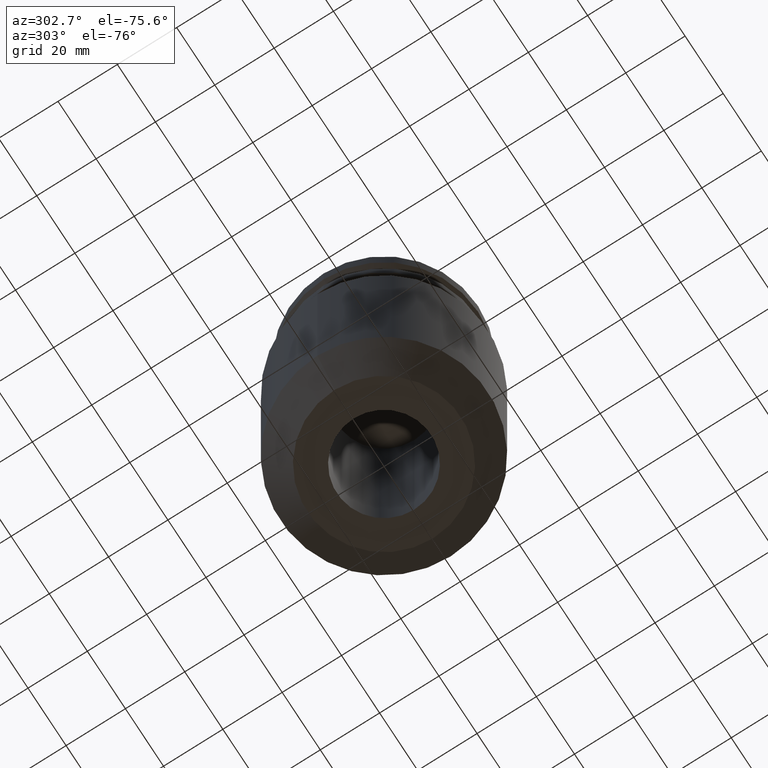
[diagram: clean part render]
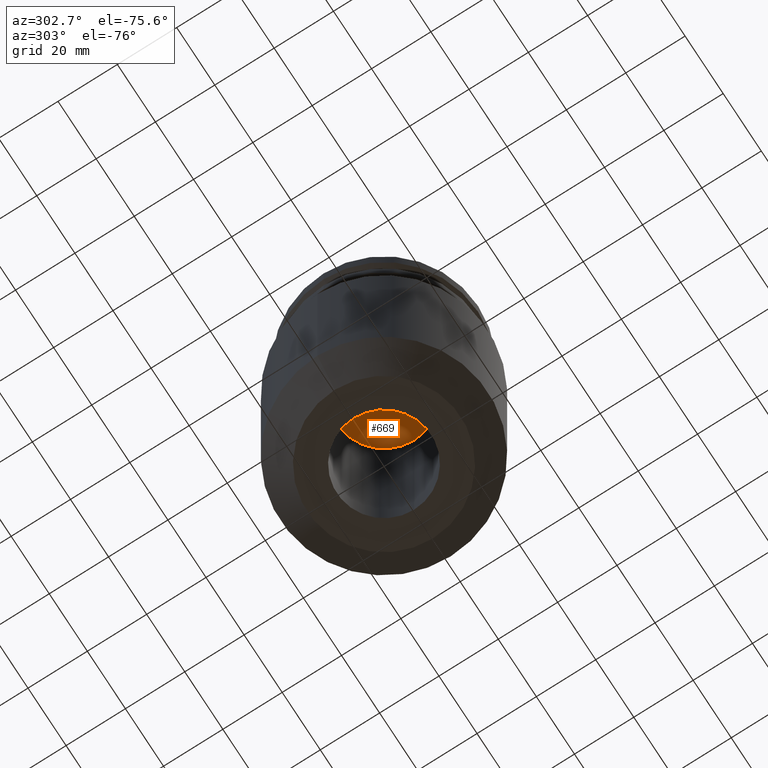
[diagram: same view with one face highlighted and labeled with its STEP entity id]
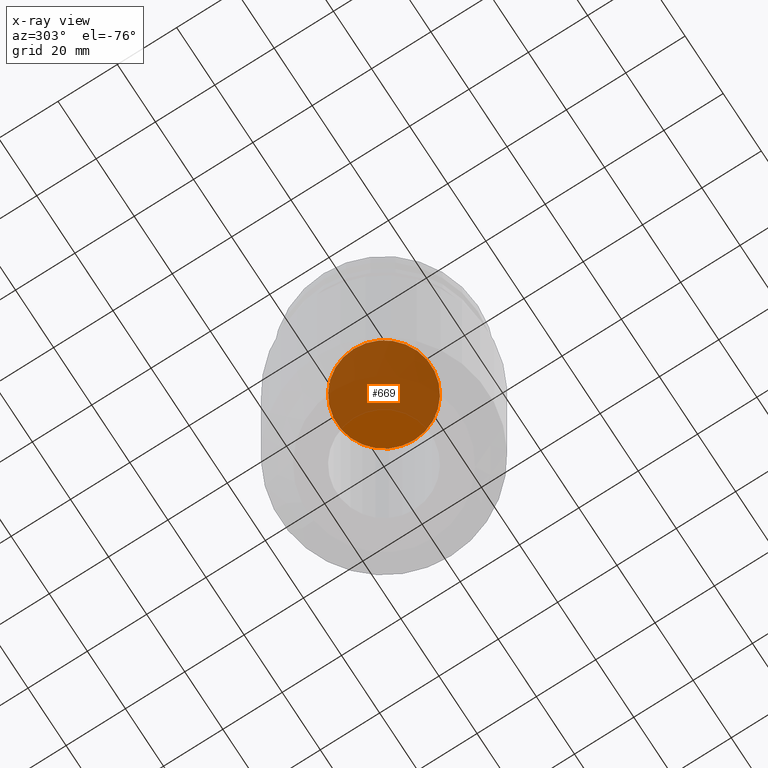
[diagram: x-ray of the same camera — body ghosted, the highlighted face saturated]
A machine part, auxiliary view. The second image highlights one B-rep face of the part: STEP entity #669.
The next image is the same camera in x-ray: the body ghosted, the highlighted face saturated — about 76% of this face is hidden behind the body in this view.
In plain terms, the highlighted planar face has unit normal (0, -0, 1).
Its self-contained STEP definition (entity closure, byte-faithful):
#27 = CARTESIAN_POINT ( 'NONE',  ( 0.000000000000000000, 0.000000000000000000, -35.04999999999999716 ) ) ;
#163 = DIRECTION ( 'NONE',  ( -0.000000000000000000, -0.000000000000000000, 1.000000000000000000 ) ) ;
#242 = PLANE ( 'NONE',  #581 ) ;
#252 = ORIENTED_EDGE ( 'NONE', *, *, #607, .F. ) ;
#266 = VERTEX_POINT ( 'NONE', #702 ) ;
#272 = DIRECTION ( 'NONE',  ( -0.000000000000000000, -0.000000000000000000, 1.000000000000000000 ) ) ;
#305 = DIRECTION ( 'NONE',  ( 1.000000000000000000, 0.000000000000000000, 0.000000000000000000 ) ) ;
#338 = CIRCLE ( 'NONE', #418, 15.87500000000000000 ) ;
#418 = AXIS2_PLACEMENT_3D ( 'NONE', #673, #272, #473 ) ;
#426 = VERTEX_POINT ( 'NONE', #737 ) ;
#443 = FACE_OUTER_BOUND ( 'NONE', #584, .T. ) ;
#473 = DIRECTION ( 'NONE',  ( 1.000000000000000000, 0.000000000000000000, 0.000000000000000000 ) ) ;
#578 = AXIS2_PLACEMENT_3D ( 'NONE', #27, #163, #803 ) ;
#581 = AXIS2_PLACEMENT_3D ( 'NONE', #792, #840, #305 ) ;
#584 = EDGE_LOOP ( 'NONE', ( #252, #721 ) ) ;
#588 = EDGE_CURVE ( 'NONE', #426, #266, #727, .T. ) ;
#607 = EDGE_CURVE ( 'NONE', #266, #426, #338, .T. ) ;
#669 = ADVANCED_FACE ( 'NONE', ( #443 ), #242, .F. ) ;
#673 = CARTESIAN_POINT ( 'NONE',  ( 0.000000000000000000, 0.000000000000000000, -35.04999999999999716 ) ) ;
#702 = CARTESIAN_POINT ( 'NONE',  ( 15.87500000000000000, 0.000000000000000000, -35.04999999999999716 ) ) ;
#721 = ORIENTED_EDGE ( 'NONE', *, *, #588, .F. ) ;
#727 = CIRCLE ( 'NONE', #578, 15.87500000000000000 ) ;
#737 = CARTESIAN_POINT ( 'NONE',  ( -15.87500000000000000, 1.944126793646423238E-15, -35.04999999999999716 ) ) ;
#792 = CARTESIAN_POINT ( 'NONE',  ( 0.000000000000000000, 22.22499999999999787, -35.04999999999999716 ) ) ;
#803 = DIRECTION ( 'NONE',  ( 1.000000000000000000, 0.000000000000000000, 0.000000000000000000 ) ) ;
#840 = DIRECTION ( 'NONE',  ( 0.000000000000000000, -0.000000000000000000, 1.000000000000000000 ) ) ;